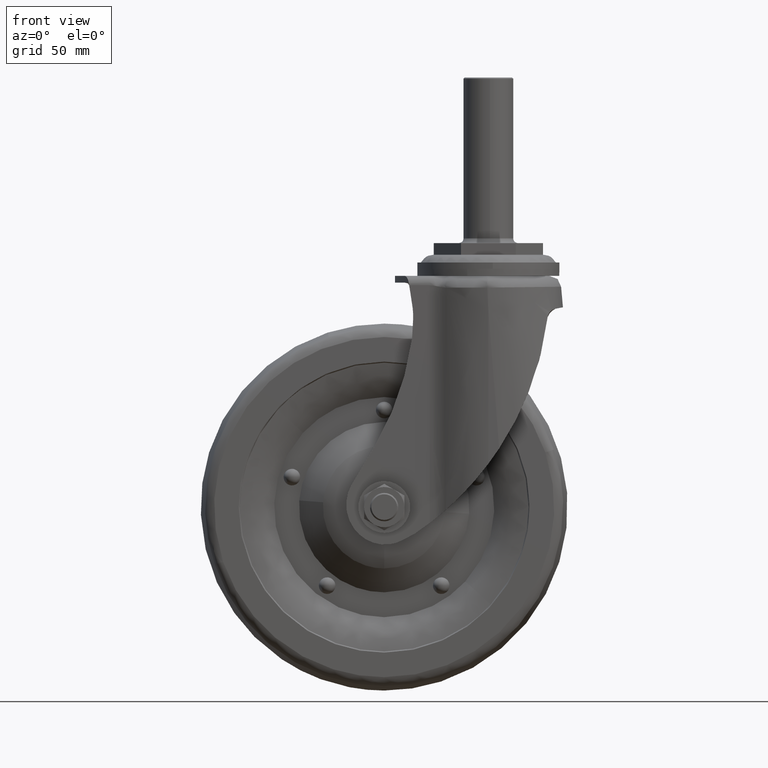
[diagram: clean part render]
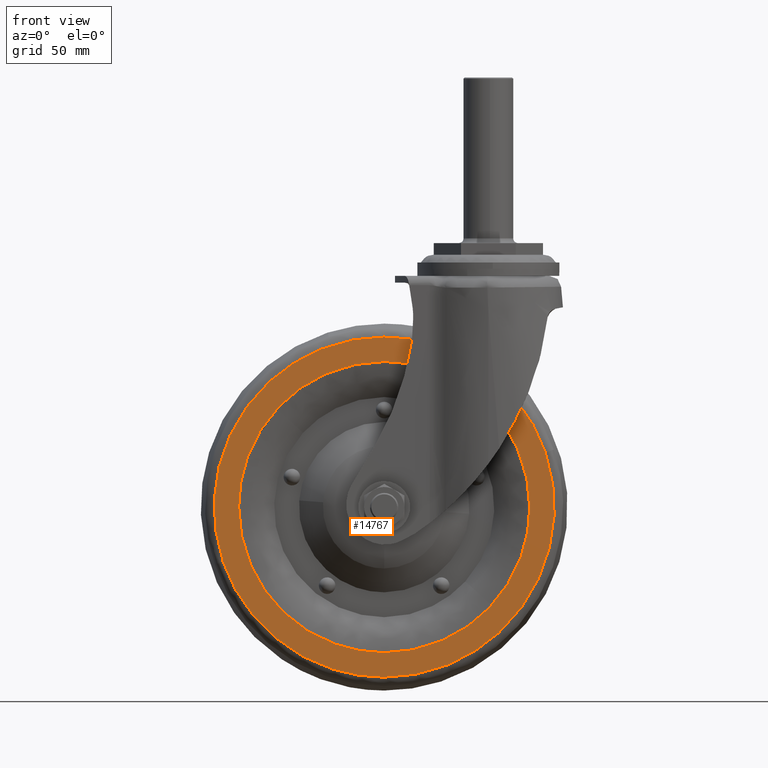
[diagram: same view with one face highlighted and labeled with its STEP entity id]
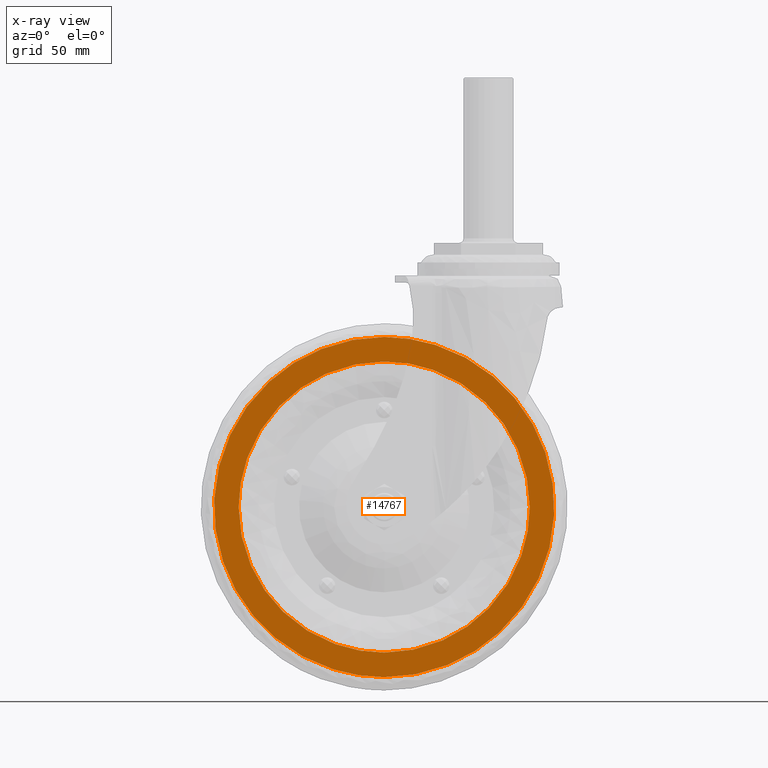
[diagram: x-ray of the same camera — body ghosted, the highlighted face saturated]
A machine part, front view. The second image highlights one B-rep face of the part: STEP entity #14767.
The next image is the same camera in x-ray: the body ghosted, the highlighted face saturated — about 0% of this face is hidden behind the body in this view.
In plain terms, the highlighted face is a freeform B-spline surface patch.
Its self-contained STEP definition (entity closure, byte-faithful):
#14570=CARTESIAN_POINT('',(24.042195529246161,-14.0,-83.542511851700667));
#14571=VERTEX_POINT('',#14570);
#14585=CARTESIAN_POINT('',(-44.0,-14.0,-178.442801406874990));
#14586=VERTEX_POINT('',#14585);
#14587=CARTESIAN_POINT('',(-44.0,-14.0,-178.442801406874990));
#14588=CARTESIAN_POINT('',(27.842801502385740,-13.999999999999996,-178.442801406826450));
#14589=CARTESIAN_POINT('',(27.842801502585662,-14.0,-106.599999904516300));
#14590=CARTESIAN_POINT('',(27.842801502618617,-13.999999999999995,-94.758025622236460));
#14591=CARTESIAN_POINT('',(24.042195529246150,-14.000000000000005,-83.542511851700667));
#14599=(BOUNDED_CURVE()B_SPLINE_CURVE(2,(#14587,#14588,#14589,#14590,#14591),.UNSPECIFIED.,.F.,.U.)B_SPLINE_CURVE_WITH_KNOTS((3,2,3),(0.0,0.250000000000000,0.304552238306116),.UNSPECIFIED.)CURVE()GEOMETRIC_REPRESENTATION_ITEM()RATIONAL_B_SPLINE_CURVE((1.0,0.707106781186548,1.0,0.936088077316173,0.900068462127147))REPRESENTATION_ITEM(''));
#14600=EDGE_CURVE('',#14586,#14571,#14599,.T.);
#14602=CARTESIAN_POINT('',(-112.042195529246200,-14.0,-129.657487957564400));
#14603=VERTEX_POINT('',#14602);
#14604=CARTESIAN_POINT('',(-112.042195529246170,-14.000000000000005,-129.657487957564460));
#14605=CARTESIAN_POINT('',(-95.510295385764707,-14.000000000000002,-178.442801406942750));
#14606=CARTESIAN_POINT('',(-44.0,-14.0,-178.442801406874990));
#14614=(BOUNDED_CURVE()B_SPLINE_CURVE(2,(#14604,#14605,#14606),.UNSPECIFIED.,.F.,.U.)B_SPLINE_CURVE_WITH_KNOTS((3,3),(0.804552238306116,1.0),.UNSPECIFIED.)CURVE()GEOMETRIC_REPRESENTATION_ITEM()RATIONAL_B_SPLINE_CURVE((0.900068462127147,0.771018703870375,1.0))REPRESENTATION_ITEM(''));
#14615=EDGE_CURVE('',#14603,#14586,#14614,.T.);
#14659=CARTESIAN_POINT('',(-44.0,-14.0,-34.757198402390173));
#14660=VERTEX_POINT('',#14659);
#14661=CARTESIAN_POINT('',(-44.0,-14.0,-34.757198402390173));
#14662=CARTESIAN_POINT('',(-115.842801502385750,-13.999999999999998,-34.757198402438739));
#14663=CARTESIAN_POINT('',(-115.842801502585700,-14.0,-106.599999904748900));
#14664=CARTESIAN_POINT('',(-115.842801502618630,-13.999999999999995,-118.441974187028650));
#14665=CARTESIAN_POINT('',(-112.042195529246170,-14.000000000000005,-129.657487957564460));
#14673=(BOUNDED_CURVE()B_SPLINE_CURVE(2,(#14661,#14662,#14663,#14664,#14665),.UNSPECIFIED.,.F.,.U.)B_SPLINE_CURVE_WITH_KNOTS((3,2,3),(0.500000000000000,0.750000000000000,0.804552238306116),.UNSPECIFIED.)CURVE()GEOMETRIC_REPRESENTATION_ITEM()RATIONAL_B_SPLINE_CURVE((1.0,0.707106781186548,1.0,0.936088077316173,0.900068462127147))REPRESENTATION_ITEM(''));
#14674=EDGE_CURVE('',#14660,#14603,#14673,.T.);
#14676=CARTESIAN_POINT('',(24.042195529246150,-14.000000000000005,-83.542511851700667));
#14677=CARTESIAN_POINT('',(7.510295385764650,-13.999999999999998,-34.757198402322430));
#14678=CARTESIAN_POINT('',(-44.0,-14.0,-34.757198402390173));
#14686=(BOUNDED_CURVE()B_SPLINE_CURVE(2,(#14676,#14677,#14678),.UNSPECIFIED.,.F.,.U.)B_SPLINE_CURVE_WITH_KNOTS((3,3),(0.304552238306116,0.500000000000000),.UNSPECIFIED.)CURVE()GEOMETRIC_REPRESENTATION_ITEM()RATIONAL_B_SPLINE_CURVE((0.900068462127147,0.771018703870375,1.0))REPRESENTATION_ITEM(''));
#14687=EDGE_CURVE('',#14571,#14660,#14686,.T.);
#14694=CARTESIAN_POINT('',(-123.015564178331000,-14.0,-27.580102810806739));
#14695=CARTESIAN_POINT('',(-123.015564178331000,-14.0,-185.619900852406600));
#14696=CARTESIAN_POINT('',(35.015565461842172,-14.0,-27.580102810806739));
#14697=CARTESIAN_POINT('',(35.015565461842172,-14.0,-185.619900852406600));
#14698=B_SPLINE_SURFACE_WITH_KNOTS('',1,1,((#14694,#14696),(#14695,#14697)),.UNSPECIFIED.,.F.,.F.,.U.,(2,2),(2,2),(0.0,158.039798041599910),(0.0,158.031129640173110),.UNSPECIFIED.);
#14699=ORIENTED_EDGE('',*,*,#14600,.T.);
#14700=ORIENTED_EDGE('',*,*,#14687,.T.);
#14701=ORIENTED_EDGE('',*,*,#14674,.T.);
#14702=ORIENTED_EDGE('',*,*,#14615,.T.);
#14703=EDGE_LOOP('',(#14699,#14700,#14701,#14702));
#14704=FACE_OUTER_BOUND('',#14703,.T.);
#14705=CARTESIAN_POINT('',(-44.0,-14.0,-45.099999904632583));
#14706=VERTEX_POINT('',#14705);
#14707=CARTESIAN_POINT('',(-105.499999987765700,-14.0,-106.599999904632600));
#14708=VERTEX_POINT('',#14707);
#14709=CARTESIAN_POINT('',(-44.0,-14.0,-45.099999904632583));
#14710=CARTESIAN_POINT('',(-105.499999993882880,-13.999999999999998,-45.099999904632554));
#14711=CARTESIAN_POINT('',(-105.499999987765700,-14.0,-106.599999904632600));
#14719=(BOUNDED_CURVE()B_SPLINE_CURVE(2,(#14709,#14710,#14711),.UNSPECIFIED.,.F.,.U.)B_SPLINE_CURVE_WITH_KNOTS((3,3),(0.500000000000000,0.750000000000000),.UNSPECIFIED.)CURVE()GEOMETRIC_REPRESENTATION_ITEM()RATIONAL_B_SPLINE_CURVE((1.0,0.707106781186548,1.0))REPRESENTATION_ITEM(''));
#14720=EDGE_CURVE('',#14706,#14708,#14719,.T.);
#14721=ORIENTED_EDGE('',*,*,#14720,.F.);
#14722=CARTESIAN_POINT('',(17.499999987765740,-14.0,-106.599999904632600));
#14723=VERTEX_POINT('',#14722);
#14724=CARTESIAN_POINT('',(17.499999987765744,-14.000000000000004,-106.599999904632630));
#14725=CARTESIAN_POINT('',(17.499999993882888,-13.999999999999998,-45.099999904632547));
#14726=CARTESIAN_POINT('',(-44.0,-14.0,-45.099999904632583));
#14734=(BOUNDED_CURVE()B_SPLINE_CURVE(2,(#14724,#14725,#14726),.UNSPECIFIED.,.F.,.U.)B_SPLINE_CURVE_WITH_KNOTS((3,3),(0.250000000000000,0.500000000000000),.UNSPECIFIED.)CURVE()GEOMETRIC_REPRESENTATION_ITEM()RATIONAL_B_SPLINE_CURVE((1.000000000000000,0.707106781186547,1.0))REPRESENTATION_ITEM(''));
#14735=EDGE_CURVE('',#14723,#14706,#14734,.T.);
#14736=ORIENTED_EDGE('',*,*,#14735,.F.);
#14737=CARTESIAN_POINT('',(-44.0,-14.0,-168.099999904632600));
#14738=VERTEX_POINT('',#14737);
#14739=CARTESIAN_POINT('',(-44.0,-14.0,-168.099999904632600));
#14740=CARTESIAN_POINT('',(17.499999993882870,-13.999999999999998,-168.099999904632570));
#14741=CARTESIAN_POINT('',(17.499999987765740,-14.0,-106.599999904632600));
#14749=(BOUNDED_CURVE()B_SPLINE_CURVE(2,(#14739,#14740,#14741),.UNSPECIFIED.,.F.,.U.)B_SPLINE_CURVE_WITH_KNOTS((3,3),(0.0,0.250000000000000),.UNSPECIFIED.)CURVE()GEOMETRIC_REPRESENTATION_ITEM()RATIONAL_B_SPLINE_CURVE((1.0,0.707106781186548,1.0))REPRESENTATION_ITEM(''));
#14750=EDGE_CURVE('',#14738,#14723,#14749,.T.);
#14751=ORIENTED_EDGE('',*,*,#14750,.F.);
#14752=CARTESIAN_POINT('',(-105.499999987765700,-14.0,-106.599999904632600));
#14753=CARTESIAN_POINT('',(-105.499999993882880,-13.999999999999998,-168.099999904632570));
#14754=CARTESIAN_POINT('',(-44.0,-14.0,-168.099999904632600));
#14762=(BOUNDED_CURVE()B_SPLINE_CURVE(2,(#14752,#14753,#14754),.UNSPECIFIED.,.F.,.U.)B_SPLINE_CURVE_WITH_KNOTS((3,3),(0.750000000000000,1.0),.UNSPECIFIED.)CURVE()GEOMETRIC_REPRESENTATION_ITEM()RATIONAL_B_SPLINE_CURVE((1.0,0.707106781186548,1.0))REPRESENTATION_ITEM(''));
#14763=EDGE_CURVE('',#14708,#14738,#14762,.T.);
#14764=ORIENTED_EDGE('',*,*,#14763,.F.);
#14765=EDGE_LOOP('',(#14721,#14736,#14751,#14764));
#14766=FACE_BOUND('',#14765,.T.);
#14767=ADVANCED_FACE('',(#14704,#14766),#14698,.T.);